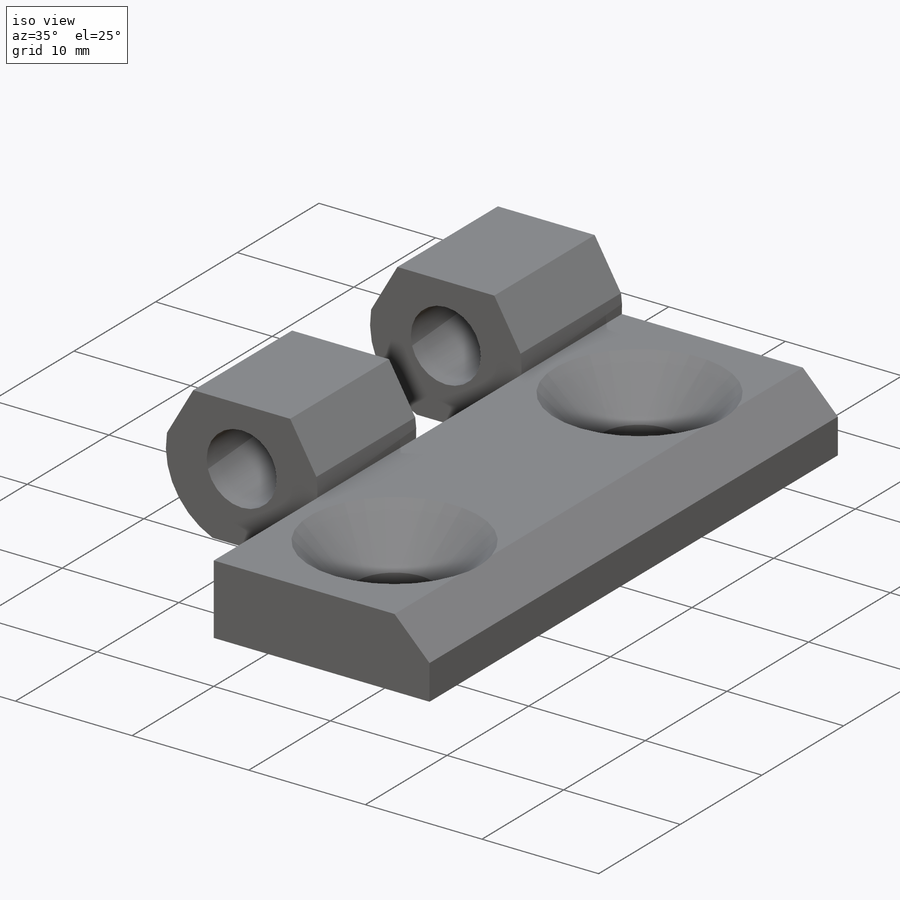
[diagram: iso view]
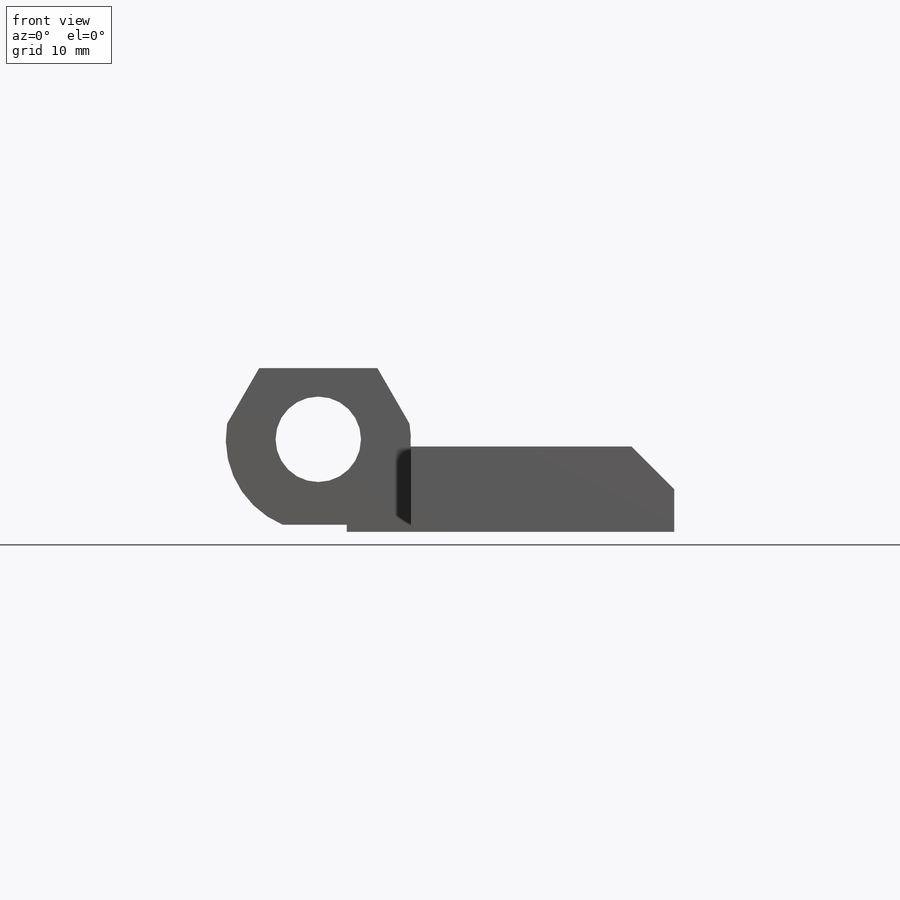
[diagram: front view]
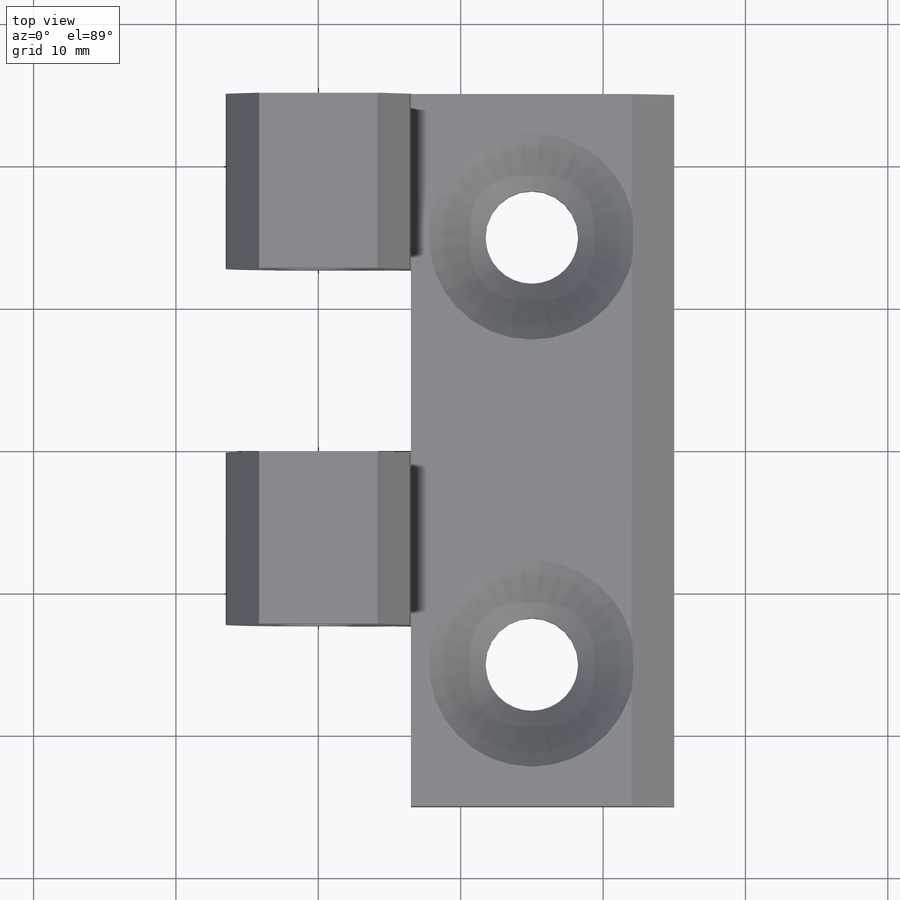
[diagram: top view]
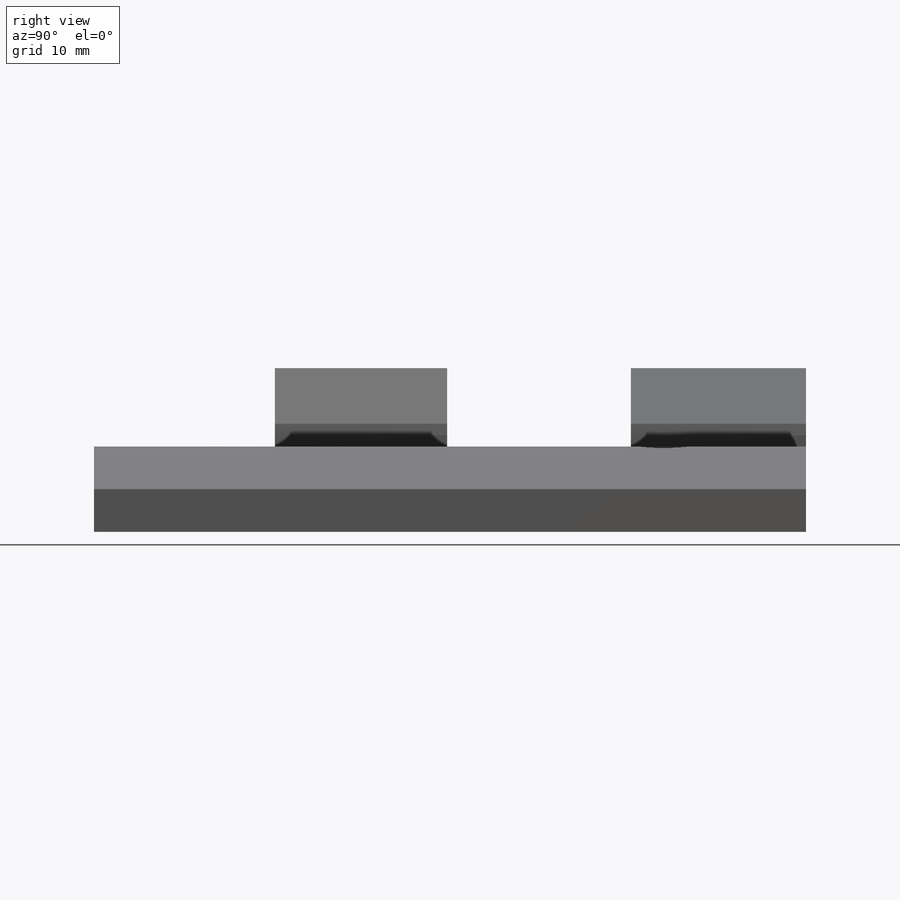
[diagram: right view]
SOLIDWORKS PART (.sldprt)
format: sldprt  version: not decoded by parser v0  size: 276,992 bytes
history: native  units: mm
features: sketch x5, cut_extrude x4, material x1, extrude x1, chamfer x1 (+13 scaffold rows collapsed)
feature tree (25):
  scaffold x13  (default folders/planes/origin — collapsed)
  material  "AISI 1020"
  sketch  "Sketch2"  dims[c1.D1=6.0mm c1.D7=6.5mm c1.D2=6.0mm c1.D3=11.5mm c1.D4=25.0mm c1.D5=~12.531327mm c2.D5=45.0deg c2.D6=6.5mm c2.D8=0.5mm c2.D9=23.0mm c2.D10=3.0mm]
  extrude  "Boss-Extrude1"  Depth=50mm
  sketch  "Sketch3"  dims[c1.D1=~5.017968mm c1.D2=~5.017968mm c1.D3=6.5mm c2.D1=30.0mm c2.D2=15.0mm]
  cut_extrude  "Cut-Extrude1"  Depth=50mm
  chamfer  "Chamfer1"  Distance=4mm Angle=45deg
  sketch  "Sketch4"  dims[c1.D1=~5.17445mm c2.D1=~116.829494deg c3.D1=~4.617439mm c4.D1=60.0deg]
  cut_extrude  "Cut-Extrude2"  Depth=50mm
  sketch  "Sketch5"  dims[D1=12.5mm]
  cut_extrude  "Cut-Extrude3"  Depth=50mm
  sketch  "Sketch6"  dims[D1=0.2mm D2=0.2mm D3=0.2mm]
  cut_extrude  "Cut-Extrude4"  Depth=50mm
decode coverage: 11 of 11 modeling features carry decoded parameters
note: ~ marks probable driven/reference dimensions
note: suppression state not decoded; provenance and decode notes live in map.json
